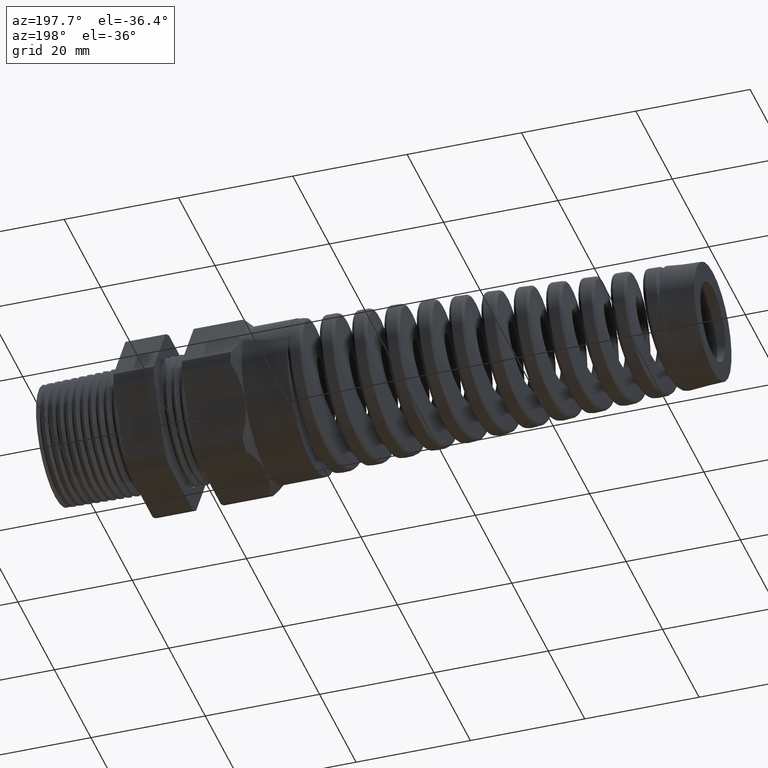
[diagram: clean part render]
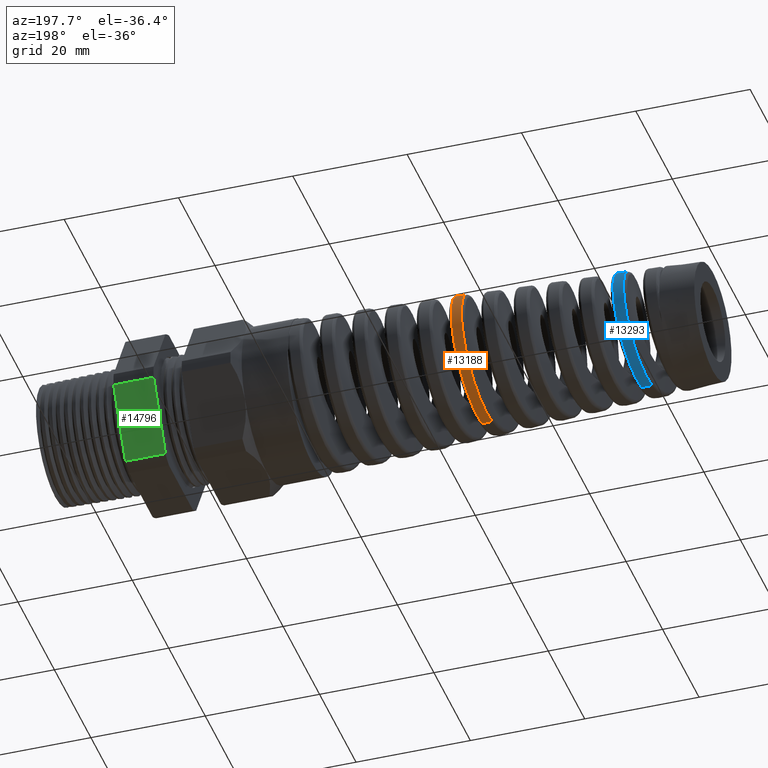
[diagram: same view with three faces highlighted in distinct colors, each labeled with its STEP entity id]
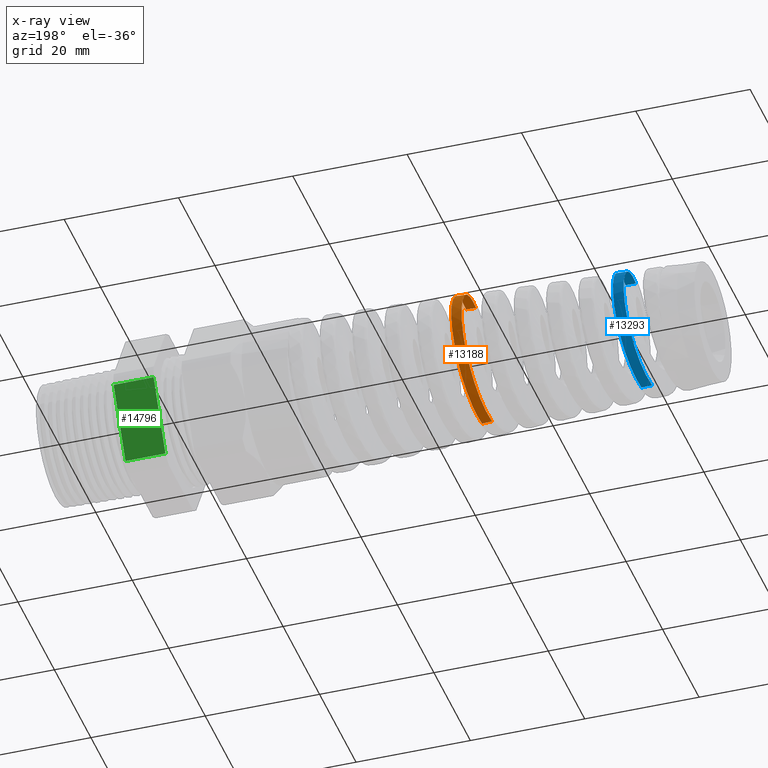
[diagram: x-ray of the same camera — body ghosted, the three highlighted faces saturated]
A machine part, auxiliary view with three faces highlighted in distinct colors.
The next image is the same camera in x-ray (body ghosted, the three faces saturated) — at least one of them is partly hidden behind the body in this view.
Their STEP definitions:

[orange] entity #13188 — the highlighted conical surface has half-angle 2.5 deg.
#5995 = CARTESIAN_POINT ( 'NONE',  ( -2.696856020308570300, 0.3768165898630730900, -0.2876654345545630000 ) ) ;
#5996 = CARTESIAN_POINT ( 'NONE',  ( -2.699158726486145200, 0.3570658423958825200, -0.3116903365111176600 ) ) ;
#5997 = CARTESIAN_POINT ( 'NONE',  ( -2.700302563197850300, 0.3466526568316878900, -0.3231543674473634200 ) ) ;
#5998 = CARTESIAN_POINT ( 'NONE',  ( -2.702588786172081200, 0.3247692753747967200, -0.3450031541705914100 ) ) ;
#5999 = CARTESIAN_POINT ( 'NONE',  ( -2.703731072245537400, 0.3132990647147582100, -0.3553879055225678300 ) ) ;
#6000 = CARTESIAN_POINT ( 'NONE',  ( -2.706026757238996900, 0.2892896712138437500, -0.3750645826090340800 ) ) ;
#6001 = CARTESIAN_POINT ( 'NONE',  ( -2.707185356925390100, 0.2766914968957904200, -0.3843949735729150200 ) ) ;
#6002 = CARTESIAN_POINT ( 'NONE',  ( -2.710659994549903500, 0.2376491391930830000, -0.4104028879131841900 ) ) ;
#6003 = CARTESIAN_POINT ( 'NONE',  ( -2.712947581822263900, 0.2103051755114690200, -0.4249292952616804400 ) ) ;
#6004 = CARTESIAN_POINT ( 'NONE',  ( -2.716396175521465000, 0.1673785338992618800, -0.4426246158687375300 ) ) ;
#6005 = CARTESIAN_POINT ( 'NONE',  ( -2.717548286622314600, 0.1527488797505234800, -0.4478357484343686900 ) ) ;
#6006 = CARTESIAN_POINT ( 'NONE',  ( -2.719865358474968800, 0.1228301168713487900, -0.4568436995595259200 ) ) ;
#6007 = CARTESIAN_POINT ( 'NONE',  ( -2.721027212593749600, 0.1075873335295689500, -0.4606164478004103900 ) ) ;
#6008 = CARTESIAN_POINT ( 'NONE',  ( -2.724478026884842800, 0.06186607520946267600, -0.4695702584219455500 ) ) ;
#6009 = CARTESIAN_POINT ( 'NONE',  ( -2.726757004992938600, 0.03108284040666850100, -0.4725091475806539300 ) ) ;
#6010 = CARTESIAN_POINT ( 'NONE',  ( -2.729064019508510500, -5.221791599398728000E-013, -0.4724084211515660000 ) ) ;
#6011 = B_SPLINE_CURVE_WITH_KNOTS ( 'NONE', 3,
 ( #6010, #6009, #6008, #6007, #6006, #6005, #6004, #6003, #6002, #6001, #6000, #5999, #5998, #5997, #5996, #5995, #6069, #6068, #6067, #6066, #6065, #6064, #6063, #6062, #6061, #6060, #6059, #6058, #6057, #6056, #6055, #6054, #6053, #6052, #6051, #6050, #6049, #6048, #6047, #6046, #6045, #6044, #6043, #6042, #6041, #6040, #6039, #6038, #6037, #6036 ),
 .UNSPECIFIED., .F., .F.,
 ( 4, 2, 2, 2, 2, 2, 2, 2, 2, 2, 2, 2, 2, 2, 2, 2, 2, 2, 2, 2, 2, 2, 2, 2, 4 ),
 ( 0.4188602526272079400, 0.4212589501826458100, 0.4224582989603647400, 0.4236576477380836800, 0.4260563452935215400, 0.4272556940712404800, 0.4284550428489594100, 0.4296543916266783400, 0.4308537404043972800, 0.4320530891821162100, 0.4332524379598351500, 0.4356511355152730100, 0.4380498330707108800, 0.4392491818484298100, 0.4404485306261487500, 0.4428472281815866200, 0.4452459257370244800, 0.4476446232924623500, 0.4488439720701812900, 0.4500433208479002200, 0.4512426696256191500, 0.4524420184033380900, 0.4548407159587760100, 0.4560400647364949400, 0.4572394135142138800 ),
 .UNSPECIFIED. ) ;
#6035 = FACE_OUTER_BOUND ( 'NONE', #13204, .T. ) ;
#6036 = CARTESIAN_POINT ( 'NONE',  ( -2.618906819048463700, 5.392850296267073000E-013, 0.4772179883918136200 ) ) ;
#6037 = CARTESIAN_POINT ( 'NONE',  ( -2.620047485671862300, 0.01554093149805055500, 0.4771681858114744100 ) ) ;
#6038 = CARTESIAN_POINT ( 'NONE',  ( -2.621199609374811300, 0.03124345330175031000, 0.4763495637862604800 ) ) ;
#6039 = CARTESIAN_POINT ( 'NONE',  ( -2.623490228345769700, 0.06229776372631541700, 0.4731898406073966100 ) ) ;
#6040 = CARTESIAN_POINT ( 'NONE',  ( -2.624628216876799600, 0.07764284937778770400, 0.4708605335756485500 ) ) ;
#6041 = CARTESIAN_POINT ( 'NONE',  ( -2.628038687560305700, 0.1231444078503369000, 0.4616813778848638500 ) ) ;
#6042 = CARTESIAN_POINT ( 'NONE',  ( -2.630308058585727200, 0.1527722402085550400, 0.4526611710456180900 ) ) ;
#6043 = CARTESIAN_POINT ( 'NONE',  ( -2.633768270526999800, 0.1961127992326779600, 0.4346294231774925400 ) ) ;
#6044 = CARTESIAN_POINT ( 'NONE',  ( -2.634921353235663700, 0.2102518352072672800, 0.4279077490034594000 ) ) ;
#6045 = CARTESIAN_POINT ( 'NONE',  ( -2.637207399545730400, 0.2375954519645339100, 0.4132362078293812500 ) ) ;
#6046 = CARTESIAN_POINT ( 'NONE',  ( -2.638344103827499500, 0.2508537917605570500, 0.4052643442448165500 ) ) ;
#6047 = CARTESIAN_POINT ( 'NONE',  ( -2.640617933446069100, 0.2765509550436453000, 0.3880616022235830500 ) ) ;
#6048 = CARTESIAN_POINT ( 'NONE',  ( -2.641755020757946800, 0.2889897978191305300, 0.3788307482668284400 ) ) ;
#6049 = CARTESIAN_POINT ( 'NONE',  ( -2.644042312444565600, 0.3130320416869871200, 0.3590872792595490900 ) ) ;
#6050 = CARTESIAN_POINT ( 'NONE',  ( -2.645198680720525400, 0.3246918478668091600, 0.3485124610536726200 ) ) ;
#6051 = CARTESIAN_POINT ( 'NONE',  ( -2.648641666700811000, 0.3577429171303969100, 0.3154230744955119900 ) ) ;
#6052 = CARTESIAN_POINT ( 'NONE',  ( -2.650913159019104600, 0.3773531412433596700, 0.2914962992614939500 ) ) ;
#6053 = CARTESIAN_POINT ( 'NONE',  ( -2.655490344649021200, 0.4118075929511542100, 0.2399788574384942000 ) ) ;
#6054 = CARTESIAN_POINT ( 'NONE',  ( -2.657813491552872600, 0.4267242059102167600, 0.2121003410404977700 ) ) ;
#6055 = CARTESIAN_POINT ( 'NONE',  ( -2.662381860013930200, 0.4504711587449780100, 0.1548101548295630100 ) ) ;
#6056 = CARTESIAN_POINT ( 'NONE',  ( -2.664647800973732200, 0.4594827208416353300, 0.1252220758087837800 ) ) ;
#6057 = CARTESIAN_POINT ( 'NONE',  ( -2.668093956170617600, 0.4686452108459298000, 0.07941090335431703900 ) ) ;
#6058 = CARTESIAN_POINT ( 'NONE',  ( -2.669255262996316400, 0.4709683052772429300, 0.06383585161650640000 ) ) ;
#6059 = CARTESIAN_POINT ( 'NONE',  ( -2.671556638150848900, 0.4740376958130016500, 0.03284773064621706500 ) ) ;
#6060 = CARTESIAN_POINT ( 'NONE',  ( -2.672701719210730100, 0.4748033893096402800, 0.01736878532432125500 ) ) ;
#6061 = CARTESIAN_POINT ( 'NONE',  ( -2.676134388467053000, 0.4748396403344056200, -0.02902257948728750200 ) ) ;
#6062 = CARTESIAN_POINT ( 'NONE',  ( -2.678420889625799700, 0.4718592640243842200, -0.05995259541629181100 ) ) ;
#6063 = CARTESIAN_POINT ( 'NONE',  ( -2.683045523427979100, 0.4596844555123094100, -0.1214250980356971100 ) ) ;
#6064 = CARTESIAN_POINT ( 'NONE',  ( -2.685319806874245900, 0.4506799358802844900, -0.1510714567731674400 ) ) ;
#6065 = CARTESIAN_POINT ( 'NONE',  ( -2.688749855153060000, 0.4329598684245702400, -0.1939609938932176600 ) ) ;
#6066 = CARTESIAN_POINT ( 'NONE',  ( -2.689896126852566300, 0.4263458274874418800, -0.2079922625261721200 ) ) ;
#6067 = CARTESIAN_POINT ( 'NONE',  ( -2.692205689116520300, 0.4116682955818366500, -0.2355104083813457400 ) ) ;
#6068 = CARTESIAN_POINT ( 'NONE',  ( -2.693370211326664400, 0.4035902640606336400, -0.2490077311203343100 ) ) ;
#6069 = CARTESIAN_POINT ( 'NONE',  ( -2.695692789255396800, 0.3861835923388162200, -0.2750564825345249700 ) ) ;
#6070 = DIRECTION ( 'NONE',  ( 1.000000000000000000, 0.0000000000000000000, 0.0000000000000000000 ) ) ;
#6071 = CARTESIAN_POINT ( 'NONE',  ( -1.409999999999999900, 0.0000000000000000000, 0.0000000000000000000 ) ) ;
#6072 = AXIS2_PLACEMENT_3D ( 'NONE', #6071, #6070, #6152 ) ;
#6073 = CONICAL_SURFACE ( 'NONE', #6072, 0.5299999999999999200, 0.04363323129985856300 ) ;
#6136 = CARTESIAN_POINT ( 'NONE',  ( -2.618906819048463700, 5.392850296267073000E-013, 0.4772179883918136200 ) ) ;
#6139 = CARTESIAN_POINT ( 'NONE',  ( -2.729064019508510500, -5.221791599398728000E-013, -0.4724084211515660000 ) ) ;
#6152 = DIRECTION ( 'NONE',  ( 0.0000000000000000000, 0.0000000000000000000, -1.000000000000000000 ) ) ;
#6503 = CARTESIAN_POINT ( 'NONE',  ( -2.650811639338650900, 0.1236410849054855300, -0.4597475327461822400 ) ) ;
#7713 = CARTESIAN_POINT ( 'NONE',  ( -2.657681905381141800, 0.03152106793581407200, -0.4755250315611700400 ) ) ;
#7714 = CARTESIAN_POINT ( 'NONE',  ( -2.655393214028452000, 0.06268648889700692600, -0.4725023214901459300 ) ) ;
#7719 = CARTESIAN_POINT ( 'NONE',  ( -2.651958354368803200, 0.1085021530319022300, -0.4634989739974728600 ) ) ;
#7999 = CARTESIAN_POINT ( 'NONE',  ( -2.550164078138437600, -2.477802466707305900E-016, 0.4802193612780609200 ) ) ;
#8012 = CARTESIAN_POINT ( 'NONE',  ( -2.659996058872616600, -1.298874230351441500E-016, -0.4754239934376971500 ) ) ;
#8028 = CARTESIAN_POINT ( 'NONE',  ( -2.648505074980303000, 0.1536470505319722800, -0.4507142590915609900 ) ) ;
#8029 = CARTESIAN_POINT ( 'NONE',  ( -2.647339916297355400, 0.1685789751982151000, -0.4453993385042434600 ) ) ;
#8030 = CARTESIAN_POINT ( 'NONE',  ( -2.643884010331299700, 0.2120488393071605400, -0.4274524821992506900 ) ) ;
#8031 = CARTESIAN_POINT ( 'NONE',  ( -2.641614897304609900, 0.2395136052824466700, -0.4127940940358476600 ) ) ;
#8032 = CARTESIAN_POINT ( 'NONE',  ( -2.637040805323241300, 0.2914496054154138100, -0.3781707447478236400 ) ) ;
#8033 = CARTESIAN_POINT ( 'NONE',  ( -2.634718196744319000, 0.3160594553690727100, -0.3579912953208048700 ) ) ;
#8034 = CARTESIAN_POINT ( 'NONE',  ( -2.630137375130959600, 0.3601664567229649900, -0.3138823413581960400 ) ) ;
#8035 = CARTESIAN_POINT ( 'NONE',  ( -2.627858059855150400, 0.3799355510267626300, -0.2898246242270523000 ) ) ;
#8036 = CARTESIAN_POINT ( 'NONE',  ( -2.624405832602679100, 0.4060959393445198700, -0.2506796726844229300 ) ) ;
#8037 = CARTESIAN_POINT ( 'NONE',  ( -2.623247562893404000, 0.4142342354427759300, -0.2370889394599997600 ) ) ;
#8038 = CARTESIAN_POINT ( 'NONE',  ( -2.620956943025838400, 0.4289740394153832000, -0.2094704427015531800 ) ) ;
#8039 = CARTESIAN_POINT ( 'NONE',  ( -2.618679711490535100, 0.4422794812436126000, -0.1812751919855467300 ) ) ;
#8040 = CARTESIAN_POINT ( 'NONE',  ( -2.616403709695848300, 0.4527659445752256800, -0.1519484236640438700 ) ) ;
#8041 = CARTESIAN_POINT ( 'NONE',  ( -2.614116418488721600, 0.4618271765626907300, -0.1220505216574393300 ) ) ;
#8042 = CARTESIAN_POINT ( 'NONE',  ( -2.612962154103270600, 0.4656578154815559400, -0.1067491317438520300 ) ) ;
#8043 = CARTESIAN_POINT ( 'NONE',  ( -2.609500357932101000, 0.4748356875108618600, -0.06042635663732112700 ) ) ;
#8044 = CARTESIAN_POINT ( 'NONE',  ( -2.607223290220071400, 0.4778387585923490900, -0.02940596797854007700 ) ) ;
#8045 = CARTESIAN_POINT ( 'NONE',  ( -2.603804449558666500, 0.4778172576241740400, 0.01732234630443474000 ) ) ;
#8046 = CARTESIAN_POINT ( 'NONE',  ( -2.602663975206230200, 0.4770502872066557700, 0.03293162112361813800 ) ) ;
#8047 = CARTESIAN_POINT ( 'NONE',  ( -2.600368106945763800, 0.4739550858595520400, 0.06421736097830212100 ) ) ;
#8048 = CARTESIAN_POINT ( 'NONE',  ( -2.599215338696287500, 0.4716203608147256900, 0.07985601409437481600 ) ) ;
#8049 = CARTESIAN_POINT ( 'NONE',  ( -2.595790800626397700, 0.4624294340764283900, 0.1258492229393670400 ) ) ;
#8050 = CARTESIAN_POINT ( 'NONE',  ( -2.593527319064805200, 0.4533805155693642100, 0.1556274636493620300 ) ) ;
#8051 = CARTESIAN_POINT ( 'NONE',  ( -2.590094690306719900, 0.4354271613887657500, 0.1989646065102363400 ) ) ;
#8052 = CARTESIAN_POINT ( 'NONE',  ( -2.588938078246035600, 0.4286649804300272600, 0.2132624622856298700 ) ) ;
#8053 = CARTESIAN_POINT ( 'NONE',  ( -2.586637720284576900, 0.4138370589281360500, 0.2409762734877062600 ) ) ;
#8054 = CARTESIAN_POINT ( 'NONE',  ( -2.585496085711374000, 0.4057936082329781100, 0.2543728434714328500 ) ) ;
#8055 = CARTESIAN_POINT ( 'NONE',  ( -2.582084528159621400, 0.3798258399462073300, 0.2932178272266169900 ) ) ;
#8056 = CARTESIAN_POINT ( 'NONE',  ( -2.579825608568361500, 0.3600817311004632600, 0.3173342124008359200 ) ) ;
#8057 = CARTESIAN_POINT ( 'NONE',  ( -2.576383488644325300, 0.3267042591013769000, 0.3507486801573317400 ) ) ;
#8058 = CARTESIAN_POINT ( 'NONE',  ( -2.575235121177980700, 0.3150203555198997100, 0.3613400835489655200 ) ) ;
#8060 = CARTESIAN_POINT ( 'NONE',  ( -2.572955951727342600, 0.2908800316417130000, 0.3811674875026180900 ) ) ;
#8061 = CARTESIAN_POINT ( 'NONE',  ( -2.570684791541910200, 0.2658748388453768800, 0.3997334388846083800 ) ) ;
#8063 = CARTESIAN_POINT ( 'NONE',  ( -2.568409121279283000, 0.2391608226285535100, 0.4158043505944006300 ) ) ;
#8065 = CARTESIAN_POINT ( 'NONE',  ( -2.566122510005464500, 0.2115782731451042200, 0.4306060012083881600 ) ) ;
#8066 = CARTESIAN_POINT ( 'NONE',  ( -2.564967682358913100, 0.1972713543865145200, 0.4374021509720840100 ) ) ;
#8067 = CARTESIAN_POINT ( 'NONE',  ( -2.561536693686957000, 0.1537954613504043400, 0.4554847136294916700 ) ) ;
#8068 = CARTESIAN_POINT ( 'NONE',  ( -2.559284041935843600, 0.1240096035512538300, 0.4645669204770151400 ) ) ;
#8069 = CARTESIAN_POINT ( 'NONE',  ( -2.555881090696158900, 0.07815763165018967100, 0.4738200691602263400 ) ) ;
#8070 = CARTESIAN_POINT ( 'NONE',  ( -2.554742885921767100, 0.06267673166462914300, 0.4761709952092277300 ) ) ;
#8071 = CARTESIAN_POINT ( 'NONE',  ( -2.552446626925844300, 0.03130889027064188300, 0.4793570728288030200 ) ) ;
#8072 = CARTESIAN_POINT ( 'NONE',  ( -2.551302158332782200, 0.01560820348361254000, 0.4801696716236703600 ) ) ;
#8073 = CARTESIAN_POINT ( 'NONE',  ( -2.550164078138437600, -2.477802466707305900E-016, 0.4802193612780609200 ) ) ;
#8076 = B_SPLINE_CURVE_WITH_KNOTS ( 'NONE', 3,
 ( #8073, #8072, #8071, #8070, #8069, #8068, #8067, #8066, #8065, #8063, #8061, #8060, #8058, #8057, #8056, #8055, #8054, #8053, #8052, #8051, #8050, #8049, #8048, #8047, #8046, #8045, #8044, #8043, #8042, #8041, #8040, #8039, #8038, #8037, #8036, #8035, #8034, #8033, #8032, #8031, #8030, #8029, #8028, #6503, #7719, #7714, #7713, #8122 ),
 .UNSPECIFIED., .F., .F.,
 ( 4, 2, 2, 2, 2, 1, 2, 2, 2, 2, 2, 2, 2, 2, 2, 2, 1, 2, 2, 2, 2, 2, 2, 2, 4 ),
 ( 0.3927802311364595500, 0.3939845385765269300, 0.3951888460165943200, 0.3975974608967290400, 0.3988017683367964300, 0.4000060757768638100, 0.4012103832169311400, 0.4024146906569985300, 0.4048233055371333000, 0.4060276129772006900, 0.4072319204172680200, 0.4096405352974028000, 0.4108448427374701800, 0.4120491501775375700, 0.4144577650576722900, 0.4156620724977396800, 0.4168663799378070100, 0.4180706873778743900, 0.4192749948179417800, 0.4216836096980765000, 0.4240922245782112700, 0.4265008394583459900, 0.4277051468984133800, 0.4289094543384807100, 0.4313180692186154900 ),
 .UNSPECIFIED. ) ;
#8090 = DIRECTION ( 'NONE',  ( 0.9990482215818576900, 0.0000000000000000000, -0.04361938736533632600 ) ) ;
#8091 = VECTOR ( 'NONE', #8090, 39.37007874015748100 ) ;
#8092 = CARTESIAN_POINT ( 'NONE',  ( -1.409999999999999900, 0.0000000000000000000, -0.5299999999999999200 ) ) ;
#8093 = LINE ( 'NONE', #8092, #8091 ) ;
#8115 = DIRECTION ( 'NONE',  ( 0.9990482215818576900, 5.341834311772763300E-018, 0.04361938736533632600 ) ) ;
#8116 = VECTOR ( 'NONE', #8115, 39.37007874015748100 ) ;
#8117 = CARTESIAN_POINT ( 'NONE',  ( -1.409999999999999900, 6.490628035480971200E-017, 0.5299999999999999200 ) ) ;
#8118 = LINE ( 'NONE', #8117, #8116 ) ;
#8122 = CARTESIAN_POINT ( 'NONE',  ( -2.659996058872616600, -1.298874230351441500E-016, -0.4754239934376971500 ) ) ;
#13079 = ORIENTED_EDGE ( 'NONE', *, *, #13496, .T. ) ;
#13179 = EDGE_CURVE ( 'NONE', #13206, #13226, #6011, .T. ) ;
#13180 = ORIENTED_EDGE ( 'NONE', *, *, #13179, .T. ) ;
#13188 = ADVANCED_FACE ( 'NONE', ( #6035 ), #6073, .T. ) ;
#13204 = EDGE_LOOP ( 'NONE', ( #13180, #13079, #13495, #13557 ) ) ;
#13206 = VERTEX_POINT ( 'NONE', #6139 ) ;
#13226 = VERTEX_POINT ( 'NONE', #6136 ) ;
#13480 = VERTEX_POINT ( 'NONE', #8012 ) ;
#13488 = VERTEX_POINT ( 'NONE', #7999 ) ;
#13493 = EDGE_CURVE ( 'NONE', #13488, #13480, #8076, .T. ) ;
#13495 = ORIENTED_EDGE ( 'NONE', *, *, #13493, .T. ) ;
#13496 = EDGE_CURVE ( 'NONE', #13226, #13488, #8118, .T. ) ;
#13557 = ORIENTED_EDGE ( 'NONE', *, *, #13561, .F. ) ;
#13561 = EDGE_CURVE ( 'NONE', #13206, #13480, #8093, .T. ) ;

[blue] entity #13293 — the highlighted conical surface has half-angle 2.5 deg.
#459 = EDGE_CURVE ( 'NONE', #19202, #463, #1339, .T. ) ;
#460 = EDGE_CURVE ( 'NONE', #13265, #463, #1369, .T. ) ;
#461 = ORIENTED_EDGE ( 'NONE', *, *, #460, .F. ) ;
#462 = ORIENTED_EDGE ( 'NONE', *, *, #459, .T. ) ;
#463 = VERTEX_POINT ( 'NONE', #1365 ) ;
#467 = ORIENTED_EDGE ( 'NONE', *, *, #473, .T. ) ;
#472 = VERTEX_POINT ( 'NONE', #1364 ) ;
#473 = EDGE_CURVE ( 'NONE', #472, #19202, #1393, .T. ) ;
#1302 = CARTESIAN_POINT ( 'NONE',  ( -3.733072657904385100, 0.2841050086479179300, -0.3221129474856665500 ) ) ;
#1303 = CARTESIAN_POINT ( 'NONE',  ( -3.729615309461893800, 0.3140793900132046700, -0.2921599076022823900 ) ) ;
#1304 = CARTESIAN_POINT ( 'NONE',  ( -3.728453298973671200, 0.3236472924899942400, -0.2815989575545996800 ) ) ;
#1305 = CARTESIAN_POINT ( 'NONE',  ( -3.726153618718246900, 0.3415035080814132800, -0.2598211116389059200 ) ) ;
#1306 = CARTESIAN_POINT ( 'NONE',  ( -3.725009520114247200, 0.3498499346382713000, -0.2485504226437818300 ) ) ;
#1307 = CARTESIAN_POINT ( 'NONE',  ( -3.722724268780486200, 0.3653987721470646800, -0.2252590277197480400 ) ) ;
#1308 = CARTESIAN_POINT ( 'NONE',  ( -3.721583710699166900, 0.3726011699495060900, -0.2132382549282640600 ) ) ;
#1309 = CARTESIAN_POINT ( 'NONE',  ( -3.719295051641161400, 0.3858481658929769400, -0.1884386864190323300 ) ) ;
#1310 = CARTESIAN_POINT ( 'NONE',  ( -3.718141421412133300, 0.3919172389564314900, -0.1755987723137348600 ) ) ;
#1311 = CARTESIAN_POINT ( 'NONE',  ( -3.714687168139752900, 0.4081381000362642200, -0.1363389476519801000 ) ) ;
#1312 = CARTESIAN_POINT ( 'NONE',  ( -3.712418102474484000, 0.4162280755016324900, -0.1094906349767204000 ) ) ;
#1313 = CARTESIAN_POINT ( 'NONE',  ( -3.708993960485649200, 0.4244008289814995000, -0.06824204473663318700 ) ) ;
#1314 = CARTESIAN_POINT ( 'NONE',  ( -3.707849349613551800, 0.4264599524141905500, -0.05432863686403961000 ) ) ;
#1315 = CARTESIAN_POINT ( 'NONE',  ( -3.705543389308514800, 0.4292104135989931500, -0.02616566908292888200 ) ) ;
#1316 = CARTESIAN_POINT ( 'NONE',  ( -3.704385766185674700, 0.4298886154163136800, -0.01196145936708696400 ) ) ;
#1317 = CARTESIAN_POINT ( 'NONE',  ( -3.700950411913655400, 0.4298321897530456000, 0.03023193763142443400 ) ) ;
#1318 = CARTESIAN_POINT ( 'NONE',  ( -3.698688486946652500, 0.4270597684995780000, 0.05809926371947545000 ) ) ;
#1319 = CARTESIAN_POINT ( 'NONE',  ( -3.695262527601241000, 0.4187954250326008700, 0.09950130942633352000 ) ) ;
#1320 = CARTESIAN_POINT ( 'NONE',  ( -3.694108612457403900, 0.4153264782651242500, 0.1133101384731898500 ) ) ;
#1321 = CARTESIAN_POINT ( 'NONE',  ( -3.691813322155646400, 0.4070889725745526800, 0.1403570049329193900 ) ) ;
#1322 = CARTESIAN_POINT ( 'NONE',  ( -3.690672918861837000, 0.4023335954714640200, 0.1535857487081960000 ) ) ;
#1323 = CARTESIAN_POINT ( 'NONE',  ( -3.687256377679485600, 0.3862083247515478700, 0.1924099124700974800 ) ) ;
#1324 = CARTESIAN_POINT ( 'NONE',  ( -3.684984373050862700, 0.3729971094822242000, 0.2171514826718372300 ) ) ;
#1325 = CARTESIAN_POINT ( 'NONE',  ( -3.681530814125459500, 0.3493672774588981700, 0.2524908151231773900 ) ) ;
#1326 = CARTESIAN_POINT ( 'NONE',  ( -3.680382163118776100, 0.3409108092610652100, 0.2638726836126995000 ) ) ;
#1327 = CARTESIAN_POINT ( 'NONE',  ( -3.678104548063549500, 0.3230702625579812700, 0.2855876097024447900 ) ) ;
#1328 = CARTESIAN_POINT ( 'NONE',  ( -3.675838010205121800, 0.3042434383986338800, 0.3063425763650545800 ) ) ;
#1329 = CARTESIAN_POINT ( 'NONE',  ( -3.673568734738379000, 0.2834667302175010200, 0.3251968889772885500 ) ) ;
#1330 = CARTESIAN_POINT ( 'NONE',  ( -3.671286080478711500, 0.2616985560708684500, 0.3430834049696562800 ) ) ;
#1331 = CARTESIAN_POINT ( 'NONE',  ( -3.670131903133833100, 0.2502535291070141500, 0.3515819780505561900 ) ) ;
#1332 = CARTESIAN_POINT ( 'NONE',  ( -3.666696480422178400, 0.2150445032811078000, 0.3751266350432174200 ) ) ;
#1333 = CARTESIAN_POINT ( 'NONE',  ( -3.664431451292234200, 0.1903403971790332300, 0.3883429273141272300 ) ) ;
#1334 = CARTESIAN_POINT ( 'NONE',  ( -3.659881890005456800, 0.1385208373324239600, 0.4099062885048981900 ) ) ;
#1335 = CARTESIAN_POINT ( 'NONE',  ( -3.657578996436925400, 0.1111347924309049300, 0.4182681830663109200 ) ) ;
#1336 = CARTESIAN_POINT ( 'NONE',  ( -3.653039765616005000, 0.05606596227447783300, 0.4293332549060753200 ) ) ;
#1337 = CARTESIAN_POINT ( 'NONE',  ( -3.650786333604425100, 0.02819922231570804300, 0.4321651558183544600 ) ) ;
#1338 = CARTESIAN_POINT ( 'NONE',  ( -3.648503693373832000, -4.939584508214535200E-013, 0.4322648180431109500 ) ) ;
#1339 = B_SPLINE_CURVE_WITH_KNOTS ( 'NONE', 3,
 ( #1338, #1337, #1336, #1335, #1334, #1333, #1332, #1331, #1330, #1329, #1328, #1327, #1326, #1325, #1324, #1323, #1322, #1321, #1320, #1319, #1318, #1317, #1316, #1315, #1314, #1313, #1312, #1311, #1310, #1309, #1308, #1307, #1306, #1305, #1304, #1303, #1302, #1380, #1379, #1378, #1377, #1376, #1375, #1374, #1373, #1372, #1371 ),
 .UNSPECIFIED., .F., .F.,
 ( 4, 2, 2, 2, 2, 1, 2, 2, 2, 2, 2, 2, 2, 2, 2, 2, 2, 2, 2, 2, 2, 2, 2, 4 ),
 ( 0.7607264574887523400, 0.7628929269226817400, 0.7650593963566110200, 0.7672258657905404200, 0.7683091005075051200, 0.7693923352244698100, 0.7704755699414345100, 0.7715588046583992100, 0.7737252740923285000, 0.7748085088092931900, 0.7758917435262578900, 0.7780582129601872900, 0.7791414476771519900, 0.7802246823941166900, 0.7823911518280459700, 0.7834743865450106700, 0.7845576212619753700, 0.7856408559789400700, 0.7867240906959047700, 0.7888905601298341600, 0.7910570295637635600, 0.7932234989976928400, 0.7943067337146575400, 0.7953899684316222400 ),
 .UNSPECIFIED. ) ;
#1364 = CARTESIAN_POINT ( 'NONE',  ( -3.720578933389993500, 3.340103857324205600E-015, 0.4291179451036480400 ) ) ;
#1365 = CARTESIAN_POINT ( 'NONE',  ( -3.758332060745154000, -6.497161802481867200E-016, -0.4274696079655765400 ) ) ;
#1366 = DIRECTION ( 'NONE',  ( 0.9990482215818576900, 0.0000000000000000000, -0.04361938736533632600 ) ) ;
#1367 = VECTOR ( 'NONE', #1366, 39.37007874015748100 ) ;
#1368 = CARTESIAN_POINT ( 'NONE',  ( -1.409999999999999900, 0.0000000000000000000, -0.5299999999999999200 ) ) ;
#1369 = LINE ( 'NONE', #1368, #1367 ) ;
#1371 = CARTESIAN_POINT ( 'NONE',  ( -3.758332060745154000, -6.497161802481867200E-016, -0.4274696079655765400 ) ) ;
#1372 = CARTESIAN_POINT ( 'NONE',  ( -3.757188375584941600, 0.01400494226474325600, -0.4275195423380618900 ) ) ;
#1373 = CARTESIAN_POINT ( 'NONE',  ( -3.756043893642877900, 0.02802619152402723000, -0.4268829494566396300 ) ) ;
#1374 = CARTESIAN_POINT ( 'NONE',  ( -3.753740690579489700, 0.05610092792465811600, -0.4242089211008318600 ) ) ;
#1375 = CARTESIAN_POINT ( 'NONE',  ( -3.752576914043241500, 0.07021414439297749000, -0.4221540205707376400 ) ) ;
#1376 = CARTESIAN_POINT ( 'NONE',  ( -3.749118222706077800, 0.1117275020499338100, -0.4139889844316644300 ) ) ;
#1377 = CARTESIAN_POINT ( 'NONE',  ( -3.746835861285641800, 0.1385445949005381400, -0.4058987860999204700 ) ) ;
#1378 = CARTESIAN_POINT ( 'NONE',  ( -3.742241801992130400, 0.1904787648338063200, -0.3844970683892826600 ) ) ;
#1379 = CARTESIAN_POINT ( 'NONE',  ( -3.739917816255522900, 0.2157471594129777600, -0.3710240535705340300 ) ) ;
#1380 = CARTESIAN_POINT ( 'NONE',  ( -3.735344502820537200, 0.2624260536067160600, -0.3398666247093854500 ) ) ;
#1389 = DIRECTION ( 'NONE',  ( 0.9990482215818576900, 5.341834311772763300E-018, 0.04361938736533632600 ) ) ;
#1390 = VECTOR ( 'NONE', #1389, 39.37007874015748100 ) ;
#1391 = CARTESIAN_POINT ( 'NONE',  ( -1.409999999999999900, 6.490628035480971200E-017, 0.5299999999999999200 ) ) ;
#1393 = LINE ( 'NONE', #1391, #1390 ) ;
#6332 = CARTESIAN_POINT ( 'NONE',  ( -3.830738846142130300, -6.983737466105077100E-013, -0.4243082594421702700 ) ) ;
#6353 = CARTESIAN_POINT ( 'NONE',  ( -3.770903469669996800, 0.4232330187760733900, 0.05770627723356563900 ) ) ;
#6354 = CARTESIAN_POINT ( 'NONE',  ( -3.773200334372250400, 0.4259990941174260400, 0.02992254102867151300 ) ) ;
#6355 = CARTESIAN_POINT ( 'NONE',  ( -3.774360731507543600, 0.4267074884294836900, 0.01582751631322109500 ) ) ;
#6356 = CARTESIAN_POINT ( 'NONE',  ( -3.777829366544581900, 0.4267317914785386200, -0.02631659949038402500 ) ) ;
#6357 = CARTESIAN_POINT ( 'NONE',  ( -3.780104441073842500, 0.4239997174405343800, -0.05401370538931798300 ) ) ;
#6358 = CARTESIAN_POINT ( 'NONE',  ( -3.783532929714850100, 0.4158905599938342300, -0.09497120074621336100 ) ) ;
#6359 = CARTESIAN_POINT ( 'NONE',  ( -3.784678577405374600, 0.4125142159558098900, -0.1085249576956309300 ) ) ;
#6360 = CARTESIAN_POINT ( 'NONE',  ( -3.786988306060987200, 0.4043747243778834100, -0.1354280361775129800 ) ) ;
#6361 = CARTESIAN_POINT ( 'NONE',  ( -3.788146694473905300, 0.3996246256221079300, -0.1487078245555353600 ) ) ;
#6362 = CARTESIAN_POINT ( 'NONE',  ( -3.791593186162679300, 0.3836058008056214600, -0.1873942939380686100 ) ) ;
#6363 = CARTESIAN_POINT ( 'NONE',  ( -3.793875612724754400, 0.3705104428978229200, -0.2119181681654594100 ) ) ;
#6364 = CARTESIAN_POINT ( 'NONE',  ( -3.797333615227934900, 0.3472280994294972800, -0.2467900470955413100 ) ) ;
#6365 = CARTESIAN_POINT ( 'NONE',  ( -3.798497819345619100, 0.3388040978168611100, -0.2581521624735956800 ) ) ;
#6366 = CARTESIAN_POINT ( 'NONE',  ( -3.800807165242162900, 0.3210003949947681800, -0.2798279183853293900 ) ) ;
#6367 = CARTESIAN_POINT ( 'NONE',  ( -3.801953526874090300, 0.3116229859337742400, -0.2901554526424507400 ) ) ;
#6368 = CARTESIAN_POINT ( 'NONE',  ( -3.805387138246727900, 0.2820997079214502300, -0.3196429632999415200 ) ) ;
#6369 = CARTESIAN_POINT ( 'NONE',  ( -3.807668931483128000, 0.2605762958817229300, -0.3373223700059580500 ) ) ;
#6370 = CARTESIAN_POINT ( 'NONE',  ( -3.812315515235071800, 0.2137119466621689700, -0.3685662236027383900 ) ) ;
#6371 = CARTESIAN_POINT ( 'NONE',  ( -3.814615721638427100, 0.1890234602669791100, -0.3816787256720782200 ) ) ;
#6372 = CARTESIAN_POINT ( 'NONE',  ( -3.818062306546798900, 0.1504612706813864000, -0.3975703456160631400 ) ) ;
#6373 = CARTESIAN_POINT ( 'NONE',  ( -3.819211163027162100, 0.1373352677522178500, -0.4022434886857347800 ) ) ;
#6374 = CARTESIAN_POINT ( 'NONE',  ( -3.821520555335665000, 0.1105288861516621600, -0.4103151322357947400 ) ) ;
#6375 = CARTESIAN_POINT ( 'NONE',  ( -3.822686451519885500, 0.09678617351417258300, -0.4137202449011718700 ) ) ;
#6376 = CARTESIAN_POINT ( 'NONE',  ( -3.826150176095001400, 0.05556464103283954200, -0.4217869648721843100 ) ) ;
#6377 = CARTESIAN_POINT ( 'NONE',  ( -3.828433504350726500, 0.02788061858970478400, -0.4244089128385550900 ) ) ;
#6378 = CARTESIAN_POINT ( 'NONE',  ( -3.830738846142130300, -6.983737466105077100E-013, -0.4243082594421702700 ) ) ;
#6379 = B_SPLINE_CURVE_WITH_KNOTS ( 'NONE', 3,
 ( #6378, #6377, #6376, #6375, #6374, #6373, #6372, #6371, #6370, #6369, #6368, #6367, #6366, #6365, #6364, #6363, #6362, #6361, #6360, #6359, #6358, #6357, #6356, #6355, #6354, #6353, #6428, #6427, #6426, #6425, #6424, #6423, #6422, #6421, #6420, #6419, #6418, #6417, #6416, #6415, #6414, #6413, #6412, #6411, #6410, #6409, #6408 ),
 .UNSPECIFIED., .F., .F.,
 ( 4, 2, 2, 2, 2, 2, 2, 2, 2, 2, 2, 2, 2, 1, 2, 2, 2, 2, 2, 2, 2, 2, 2, 4 ),
 ( 0.05642855409053700000, 0.05858432379721365000, 0.05966220865055197500, 0.06074009350389029900, 0.06289586321056694900, 0.06505163291724359900, 0.06612951777058191600, 0.06720740262392024800, 0.06936317233059688400, 0.07044105718393520200, 0.07151894203727352000, 0.07367471174395016900, 0.07475259659728848700, 0.07583048145062681900, 0.07690836630396513700, 0.07798625115730345400, 0.08014202086398010400, 0.08121990571731842200, 0.08229779057065674000, 0.08445356027733338900, 0.08553144513067170700, 0.08660932998401002500, 0.08876509969068667500, 0.09092086939736331000 ),
 .UNSPECIFIED. ) ;
#6380 = DIRECTION ( 'NONE',  ( 0.0000000000000000000, 0.0000000000000000000, -1.000000000000000000 ) ) ;
#6381 = DIRECTION ( 'NONE',  ( 1.000000000000000000, 0.0000000000000000000, 0.0000000000000000000 ) ) ;
#6382 = AXIS2_PLACEMENT_3D ( 'NONE', #6384, #6381, #6380 ) ;
#6383 = CONICAL_SURFACE ( 'NONE', #6382, 0.5299999999999999200, 0.04363323129985856300 ) ;
#6384 = CARTESIAN_POINT ( 'NONE',  ( -1.409999999999999900, 0.0000000000000000000, 0.0000000000000000000 ) ) ;
#6385 = FACE_OUTER_BOUND ( 'NONE', #13283, .T. ) ;
#6408 = CARTESIAN_POINT ( 'NONE',  ( -3.720578933389993500, 3.340103857324205600E-015, 0.4291179451036480400 ) ) ;
#6409 = CARTESIAN_POINT ( 'NONE',  ( -3.722848030818363800, 0.02780601998158483600, 0.4290188741703741000 ) ) ;
#6410 = CARTESIAN_POINT ( 'NONE',  ( -3.725115342637314300, 0.05558634904280878400, 0.4262351315204492300 ) ) ;
#6411 = CARTESIAN_POINT ( 'NONE',  ( -3.729723282317614500, 0.1108309665472098900, 0.4151026146289125100 ) ) ;
#6412 = CARTESIAN_POINT ( 'NONE',  ( -3.731995388368236200, 0.1374648769303177500, 0.4069294730580008700 ) ) ;
#6413 = CARTESIAN_POINT ( 'NONE',  ( -3.735414957804354100, 0.1759846297524966000, 0.3909085493472980200 ) ) ;
#6414 = CARTESIAN_POINT ( 'NONE',  ( -3.736556287390138600, 0.1885843355614557600, 0.3849368210127894200 ) ) ;
#6415 = CARTESIAN_POINT ( 'NONE',  ( -3.738850289786020300, 0.2132912584537529600, 0.3717007360408449100 ) ) ;
#6416 = CARTESIAN_POINT ( 'NONE',  ( -3.740006295424411800, 0.2254221815599018700, 0.3644110385542034800 ) ) ;
#6417 = CARTESIAN_POINT ( 'NONE',  ( -3.743437320553423900, 0.2602821829579218800, 0.3410605169099571500 ) ) ;
#6418 = CARTESIAN_POINT ( 'NONE',  ( -3.745700110118714000, 0.2817607823418236700, 0.3234055908847335300 ) ) ;
#6419 = CARTESIAN_POINT ( 'NONE',  ( -3.749129096484213000, 0.3113512413863249200, 0.2938178201556890800 ) ) ;
#6420 = CARTESIAN_POINT ( 'NONE',  ( -3.750281889693360500, 0.3208052745392689400, 0.2833951435450273700 ) ) ;
#6421 = CARTESIAN_POINT ( 'NONE',  ( -3.752591664009485400, 0.3386538993013156200, 0.2616411461022031300 ) ) ;
#6422 = CARTESIAN_POINT ( 'NONE',  ( -3.753738565991544100, 0.3469742566959339600, 0.2504086280653811100 ) ) ;
#6423 = CARTESIAN_POINT ( 'NONE',  ( -3.757169300187687400, 0.3701783565139287700, 0.2156780962292919000 ) ) ;
#6424 = CARTESIAN_POINT ( 'NONE',  ( -3.759439495632647800, 0.3833218598895490900, 0.1911565832445632800 ) ) ;
#6425 = CARTESIAN_POINT ( 'NONE',  ( -3.762888927047212100, 0.3994604156784011300, 0.1522776238457914900 ) ) ;
#6426 = CARTESIAN_POINT ( 'NONE',  ( -3.764045967617254200, 0.4042276096463053300, 0.1389686977490637000 ) ) ;
#6427 = CARTESIAN_POINT ( 'NONE',  ( -3.766337269576340900, 0.4123482883393498900, 0.1122304767726816500 ) ) ;
#6428 = CARTESIAN_POINT ( 'NONE',  ( -3.768618677215005900, 0.4191197859694658600, 0.08522787108427901100 ) ) ;
#12678 = CARTESIAN_POINT ( 'NONE',  ( -3.648503693373832000, -4.939584508214535200E-013, 0.4322648180431109500 ) ) ;
#13265 = VERTEX_POINT ( 'NONE', #6332 ) ;
#13283 = EDGE_LOOP ( 'NONE', ( #13298, #467, #462, #461 ) ) ;
#13293 = ADVANCED_FACE ( 'NONE', ( #6385 ), #6383, .T. ) ;
#13295 = EDGE_CURVE ( 'NONE', #13265, #472, #6379, .T. ) ;
#13298 = ORIENTED_EDGE ( 'NONE', *, *, #13295, .T. ) ;
#19202 = VERTEX_POINT ( 'NONE', #12678 ) ;

[green] entity #14796 — the highlighted planar face has unit normal (0, 0.866, -0.5).
#7959 = VECTOR ( 'NONE', #8027, 39.37007874015748100 ) ;
#7960 = CARTESIAN_POINT ( 'NONE',  ( -0.5855905511811022600, 0.7239934640057523700, 0.1939934640057524300 ) ) ;
#7966 = LINE ( 'NONE', #7960, #7959 ) ;
#8026 = CARTESIAN_POINT ( 'NONE',  ( -0.5855905511811022600, 0.3313250556190262000, -0.4861281698472627600 ) ) ;
#8027 = DIRECTION ( 'NONE',  ( 0.0000000000000000000, -0.4999999999999997200, -0.8660254037844388200 ) ) ;
#8108 = CARTESIAN_POINT ( 'NONE',  ( -0.5855905511811022600, 0.5866618723924791300, -0.04387183015273695600 ) ) ;
#8898 = CARTESIAN_POINT ( 'NONE',  ( -0.3100000000000000000, 0.5866618723924791300, -0.04387183015273695600 ) ) ;
#8946 = DIRECTION ( 'NONE',  ( 0.0000000000000000000, 0.4999999999999997200, 0.8660254037844388200 ) ) ;
#8947 = VECTOR ( 'NONE', #8946, 39.37007874015748100 ) ;
#8948 = CARTESIAN_POINT ( 'NONE',  ( -0.3100000000000000000, 0.7239934640057523700, 0.1939934640057524300 ) ) ;
#8949 = LINE ( 'NONE', #8948, #8947 ) ;
#8955 = CARTESIAN_POINT ( 'NONE',  ( -0.3100000000000000000, 0.3313250556190262000, -0.4861281698472628700 ) ) ;
#10850 = DIRECTION ( 'NONE',  ( 0.0000000000000000000, 0.4999999999999997200, 0.8660254037844388200 ) ) ;
#10851 = DIRECTION ( 'NONE',  ( 0.0000000000000000000, 0.8660254037844388200, -0.4999999999999997200 ) ) ;
#10852 = CARTESIAN_POINT ( 'NONE',  ( 0.2800000000000000300, 0.5866618723924791300, -0.04387183015273695600 ) ) ;
#10853 = AXIS2_PLACEMENT_3D ( 'NONE', #10852, #10851, #10850 ) ;
#10854 = PLANE ( 'NONE',  #10853 ) ;
#10855 = FACE_OUTER_BOUND ( 'NONE', #14797, .T. ) ;
#10856 = DIRECTION ( 'NONE',  ( -1.000000000000000000, 0.0000000000000000000, 0.0000000000000000000 ) ) ;
#10857 = VECTOR ( 'NONE', #10856, 39.37007874015748100 ) ;
#10858 = CARTESIAN_POINT ( 'NONE',  ( 0.2800000000000000300, 0.3313250556190262000, -0.4861281698472628700 ) ) ;
#10864 = LINE ( 'NONE', #10858, #10857 ) ;
#11077 = DIRECTION ( 'NONE',  ( -1.000000000000000000, 0.0000000000000000000, 0.0000000000000000000 ) ) ;
#11078 = VECTOR ( 'NONE', #11077, 39.37007874015748100 ) ;
#11079 = CARTESIAN_POINT ( 'NONE',  ( 0.2800000000000000300, 0.5866618723924791300, -0.04387183015273695600 ) ) ;
#11080 = LINE ( 'NONE', #11079, #11078 ) ;
#13472 = EDGE_CURVE ( 'NONE', #13503, #13474, #7966, .T. ) ;
#13474 = VERTEX_POINT ( 'NONE', #8026 ) ;
#13503 = VERTEX_POINT ( 'NONE', #8108 ) ;
#13875 = VERTEX_POINT ( 'NONE', #8898 ) ;
#13878 = VERTEX_POINT ( 'NONE', #8955 ) ;
#13880 = EDGE_CURVE ( 'NONE', #13878, #13875, #8949, .T. ) ;
#14794 = EDGE_CURVE ( 'NONE', #13878, #13474, #10864, .T. ) ;
#14796 = ADVANCED_FACE ( 'NONE', ( #10855 ), #10854, .T. ) ;
#14797 = EDGE_LOOP ( 'NONE', ( #14851, #14852, #14853, #14854 ) ) ;
#14851 = ORIENTED_EDGE ( 'NONE', *, *, #14794, .T. ) ;
#14852 = ORIENTED_EDGE ( 'NONE', *, *, #13472, .F. ) ;
#14853 = ORIENTED_EDGE ( 'NONE', *, *, #18985, .F. ) ;
#14854 = ORIENTED_EDGE ( 'NONE', *, *, #13880, .F. ) ;
#18985 = EDGE_CURVE ( 'NONE', #13875, #13503, #11080, .T. ) ;